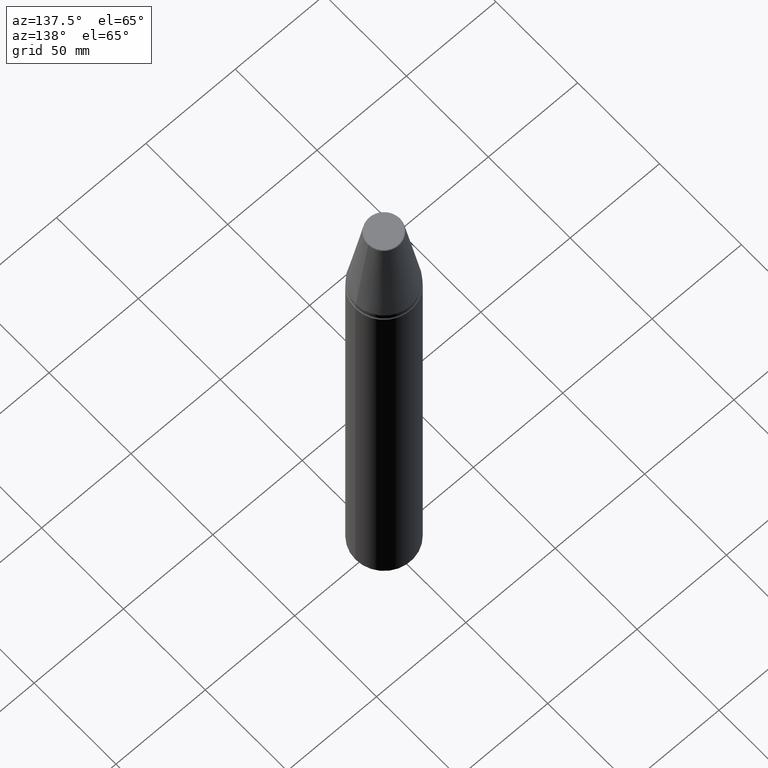
[diagram: clean part render]
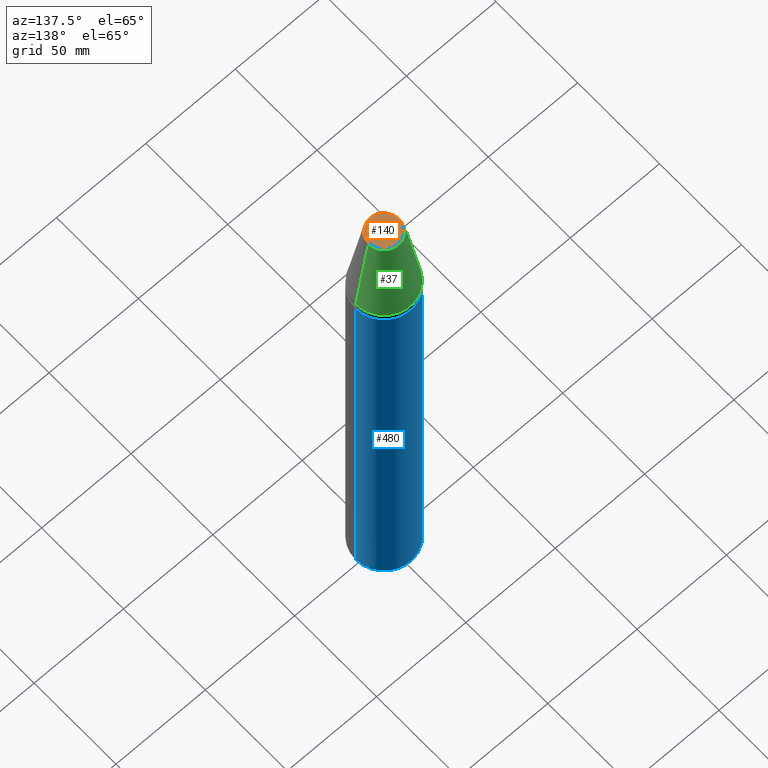
[diagram: same view with three faces highlighted in distinct colors, each labeled with its STEP entity id]
A machine part, auxiliary view with three faces highlighted in distinct colors.
Their STEP definitions:

[orange] entity #140 — the highlighted planar face has unit normal (0, 0, -1).
#52 = CARTESIAN_POINT ( 'NONE',  ( -8.384228427309015100, 1.057067554674890200E-015, 48.39999999999985600 ) ) ;
#76 = EDGE_CURVE ( 'NONE', #359, #117, #133, .T. ) ;
#109 = DIRECTION ( 'NONE',  ( 1.000000000000000000, 0.0000000000000000000, 0.0000000000000000000 ) ) ;
#116 = CARTESIAN_POINT ( 'NONE',  ( 0.0000000000000000000, 0.0000000000000000000, 48.39999999999985600 ) ) ;
#117 = VERTEX_POINT ( 'NONE', #401 ) ;
#133 = CIRCLE ( 'NONE', #465, 8.384228427309015100 ) ;
#140 = ADVANCED_FACE ( 'NONE', ( #295 ), #421, .F. ) ;
#209 = DIRECTION ( 'NONE',  ( -1.000000000000000000, 0.0000000000000000000, -0.0000000000000000000 ) ) ;
#278 = EDGE_CURVE ( 'NONE', #117, #359, #478, .T. ) ;
#295 = FACE_OUTER_BOUND ( 'NONE', #505, .T. ) ;
#306 = DIRECTION ( 'NONE',  ( 0.0000000000000000000, 0.0000000000000000000, -1.000000000000000000 ) ) ;
#342 = AXIS2_PLACEMENT_3D ( 'NONE', #484, #306, #209 ) ;
#359 = VERTEX_POINT ( 'NONE', #52 ) ;
#380 = DIRECTION ( 'NONE',  ( 1.000000000000000000, 0.0000000000000000000, 0.0000000000000000000 ) ) ;
#401 = CARTESIAN_POINT ( 'NONE',  ( 8.384228427309015100, 0.0000000000000000000, 48.39999999999985600 ) ) ;
#421 = PLANE ( 'NONE',  #342 ) ;
#422 = CARTESIAN_POINT ( 'NONE',  ( 0.0000000000000000000, 0.0000000000000000000, 48.39999999999985600 ) ) ;
#425 = ORIENTED_EDGE ( 'NONE', *, *, #278, .T. ) ;
#445 = DIRECTION ( 'NONE',  ( -0.0000000000000000000, -0.0000000000000000000, 1.000000000000000000 ) ) ;
#462 = AXIS2_PLACEMENT_3D ( 'NONE', #116, #445, #380 ) ;
#465 = AXIS2_PLACEMENT_3D ( 'NONE', #422, #522, #109 ) ;
#466 = ORIENTED_EDGE ( 'NONE', *, *, #76, .T. ) ;
#478 = CIRCLE ( 'NONE', #462, 8.384228427309015100 ) ;
#484 = CARTESIAN_POINT ( 'NONE',  ( 0.0000000000000000000, 8.384228427309015100, 48.39999999999982100 ) ) ;
#505 = EDGE_LOOP ( 'NONE', ( #425, #466 ) ) ;
#522 = DIRECTION ( 'NONE',  ( -0.0000000000000000000, -0.0000000000000000000, 1.000000000000000000 ) ) ;

[blue] entity #480 — the highlighted cylindrical surface (partial cylindrical patch) has radius 16 mm, axis along (-0, -0, 1).
#11 = CARTESIAN_POINT ( 'NONE',  ( -15.99999999999979200, 1.959434878635739500E-015, 101.9861575583861400 ) ) ;
#34 = CIRCLE ( 'NONE', #125, 15.99999999999979200 ) ;
#40 = EDGE_LOOP ( 'NONE', ( #84, #416, #75, #452 ) ) ;
#45 = DIRECTION ( 'NONE',  ( -0.0000000000000000000, -0.0000000000000000000, 1.000000000000000000 ) ) ;
#47 = CARTESIAN_POINT ( 'NONE',  ( 15.99999999999979200, 0.0000000000000000000, -249.0000000000001100 ) ) ;
#48 = AXIS2_PLACEMENT_3D ( 'NONE', #361, #335, #444 ) ;
#53 = CARTESIAN_POINT ( 'NONE',  ( -15.99999999999979200, 1.959434878635739500E-015, -249.0000000000001100 ) ) ;
#75 = ORIENTED_EDGE ( 'NONE', *, *, #328, .F. ) ;
#84 = ORIENTED_EDGE ( 'NONE', *, *, #104, .T. ) ;
#104 = EDGE_CURVE ( 'NONE', #410, #398, #107, .T. ) ;
#107 = CIRCLE ( 'NONE', #302, 15.99999999999979200 ) ;
#112 = CARTESIAN_POINT ( 'NONE',  ( 15.99999999999979200, 0.0000000000000000000, -4.000000000000447600 ) ) ;
#125 = AXIS2_PLACEMENT_3D ( 'NONE', #281, #442, #414 ) ;
#126 = VERTEX_POINT ( 'NONE', #112 ) ;
#151 = VECTOR ( 'NONE', #45, 1000.000000000000000 ) ;
#175 = DIRECTION ( 'NONE',  ( 1.000000000000000000, 0.0000000000000000000, 0.0000000000000000000 ) ) ;
#176 = VECTOR ( 'NONE', #192, 1000.000000000000000 ) ;
#192 = DIRECTION ( 'NONE',  ( -0.0000000000000000000, -0.0000000000000000000, 1.000000000000000000 ) ) ;
#241 = CARTESIAN_POINT ( 'NONE',  ( 15.99999999999979200, 0.0000000000000000000, 101.9861575583861400 ) ) ;
#256 = LINE ( 'NONE', #241, #151 ) ;
#266 = EDGE_CURVE ( 'NONE', #398, #287, #385, .T. ) ;
#281 = CARTESIAN_POINT ( 'NONE',  ( 0.0000000000000000000, 0.0000000000000000000, -4.000000000000447600 ) ) ;
#285 = CYLINDRICAL_SURFACE ( 'NONE', #48, 15.99999999999979200 ) ;
#287 = VERTEX_POINT ( 'NONE', #439 ) ;
#302 = AXIS2_PLACEMENT_3D ( 'NONE', #433, #329, #175 ) ;
#327 = EDGE_CURVE ( 'NONE', #410, #126, #256, .T. ) ;
#328 = EDGE_CURVE ( 'NONE', #126, #287, #34, .T. ) ;
#329 = DIRECTION ( 'NONE',  ( -0.0000000000000000000, -0.0000000000000000000, 1.000000000000000000 ) ) ;
#335 = DIRECTION ( 'NONE',  ( -0.0000000000000000000, -0.0000000000000000000, 1.000000000000000000 ) ) ;
#361 = CARTESIAN_POINT ( 'NONE',  ( 0.0000000000000000000, 0.0000000000000000000, 101.9861575583861400 ) ) ;
#385 = LINE ( 'NONE', #11, #176 ) ;
#398 = VERTEX_POINT ( 'NONE', #53 ) ;
#410 = VERTEX_POINT ( 'NONE', #47 ) ;
#414 = DIRECTION ( 'NONE',  ( 1.000000000000000000, 0.0000000000000000000, 0.0000000000000000000 ) ) ;
#416 = ORIENTED_EDGE ( 'NONE', *, *, #266, .T. ) ;
#433 = CARTESIAN_POINT ( 'NONE',  ( 0.0000000000000000000, 0.0000000000000000000, -249.0000000000001100 ) ) ;
#439 = CARTESIAN_POINT ( 'NONE',  ( -15.99999999999979200, 1.959434878635739500E-015, -4.000000000000447600 ) ) ;
#442 = DIRECTION ( 'NONE',  ( -0.0000000000000000000, -0.0000000000000000000, 1.000000000000000000 ) ) ;
#444 = DIRECTION ( 'NONE',  ( 1.000000000000000000, 0.0000000000000000000, 0.0000000000000000000 ) ) ;
#452 = ORIENTED_EDGE ( 'NONE', *, *, #327, .F. ) ;
#480 = ADVANCED_FACE ( 'NONE', ( #483 ), #285, .T. ) ;
#483 = FACE_OUTER_BOUND ( 'NONE', #40, .T. ) ;

[green] entity #37 — the highlighted conical surface has half-angle 8.297 deg.
#4 = EDGE_CURVE ( 'NONE', #451, #322, #252, .T. ) ;
#30 = CARTESIAN_POINT ( 'NONE',  ( 0.0000000000000000000, 0.0000000000000000000, 2.220446049250313100E-013 ) ) ;
#37 = ADVANCED_FACE ( 'NONE', ( #326 ), #420, .T. ) ;
#63 = EDGE_CURVE ( 'NONE', #451, #476, #430, .T. ) ;
#68 = CARTESIAN_POINT ( 'NONE',  ( 0.0000000000000000000, 0.0000000000000000000, 2.220446049250313100E-013 ) ) ;
#80 = EDGE_CURVE ( 'NONE', #322, #144, #514, .T. ) ;
#110 = CARTESIAN_POINT ( 'NONE',  ( 15.87499999999986100, 1.944126793646406300E-015, 2.220446049250313100E-013 ) ) ;
#141 = CARTESIAN_POINT ( 'NONE',  ( 15.87499999999986100, 0.0000000000000000000, 2.220446049250313100E-013 ) ) ;
#144 = VERTEX_POINT ( 'NONE', #193 ) ;
#159 = AXIS2_PLACEMENT_3D ( 'NONE', #68, #400, #513 ) ;
#164 = AXIS2_PLACEMENT_3D ( 'NONE', #368, #254, #303 ) ;
#167 = AXIS2_PLACEMENT_3D ( 'NONE', #30, #249, #177 ) ;
#168 = EDGE_CURVE ( 'NONE', #476, #144, #191, .T. ) ;
#177 = DIRECTION ( 'NONE',  ( -1.000000000000000000, 0.0000000000000000000, 0.0000000000000000000 ) ) ;
#181 = EDGE_LOOP ( 'NONE', ( #318, #204, #507, #274 ) ) ;
#191 = CIRCLE ( 'NONE', #159, 15.87499999999986100 ) ;
#193 = CARTESIAN_POINT ( 'NONE',  ( -15.87499999999986100, 1.944126793646406300E-015, 2.220446049250313100E-013 ) ) ;
#197 = CARTESIAN_POINT ( 'NONE',  ( 8.878994820583630000, 1.515745026156886500E-015, 47.97215411344146900 ) ) ;
#204 = ORIENTED_EDGE ( 'NONE', *, *, #63, .T. ) ;
#227 = DIRECTION ( 'NONE',  ( 0.1443082268835062000, 1.767266081435159400E-017, -0.9895327865481458000 ) ) ;
#249 = DIRECTION ( 'NONE',  ( 0.0000000000000000000, 0.0000000000000000000, -1.000000000000000000 ) ) ;
#252 = CIRCLE ( 'NONE', #164, 8.878994820583630000 ) ;
#254 = DIRECTION ( 'NONE',  ( -0.0000000000000000000, -0.0000000000000000000, 1.000000000000000000 ) ) ;
#274 = ORIENTED_EDGE ( 'NONE', *, *, #80, .F. ) ;
#303 = DIRECTION ( 'NONE',  ( 1.000000000000000000, 0.0000000000000000000, 0.0000000000000000000 ) ) ;
#317 = VECTOR ( 'NONE', #227, 1000.000000000000100 ) ;
#318 = ORIENTED_EDGE ( 'NONE', *, *, #4, .F. ) ;
#322 = VERTEX_POINT ( 'NONE', #353 ) ;
#326 = FACE_OUTER_BOUND ( 'NONE', #181, .T. ) ;
#349 = DIRECTION ( 'NONE',  ( -0.1443082268835062000, 0.0000000000000000000, -0.9895327865481458000 ) ) ;
#353 = CARTESIAN_POINT ( 'NONE',  ( -8.878994820583630000, 0.0000000000000000000, 47.97215411344146900 ) ) ;
#368 = CARTESIAN_POINT ( 'NONE',  ( 0.0000000000000000000, 0.0000000000000000000, 47.97215411344146900 ) ) ;
#400 = DIRECTION ( 'NONE',  ( -0.0000000000000000000, -0.0000000000000000000, 1.000000000000000000 ) ) ;
#406 = CARTESIAN_POINT ( 'NONE',  ( -15.87499999999986100, 0.0000000000000000000, 2.220446049250313100E-013 ) ) ;
#420 = CONICAL_SURFACE ( 'NONE', #167, 15.87499999999986100, 0.1448138461595584500 ) ;
#430 = LINE ( 'NONE', #110, #317 ) ;
#451 = VERTEX_POINT ( 'NONE', #197 ) ;
#476 = VERTEX_POINT ( 'NONE', #141 ) ;
#502 = VECTOR ( 'NONE', #349, 1000.000000000000100 ) ;
#507 = ORIENTED_EDGE ( 'NONE', *, *, #168, .T. ) ;
#513 = DIRECTION ( 'NONE',  ( 1.000000000000000000, 0.0000000000000000000, 0.0000000000000000000 ) ) ;
#514 = LINE ( 'NONE', #406, #502 ) ;